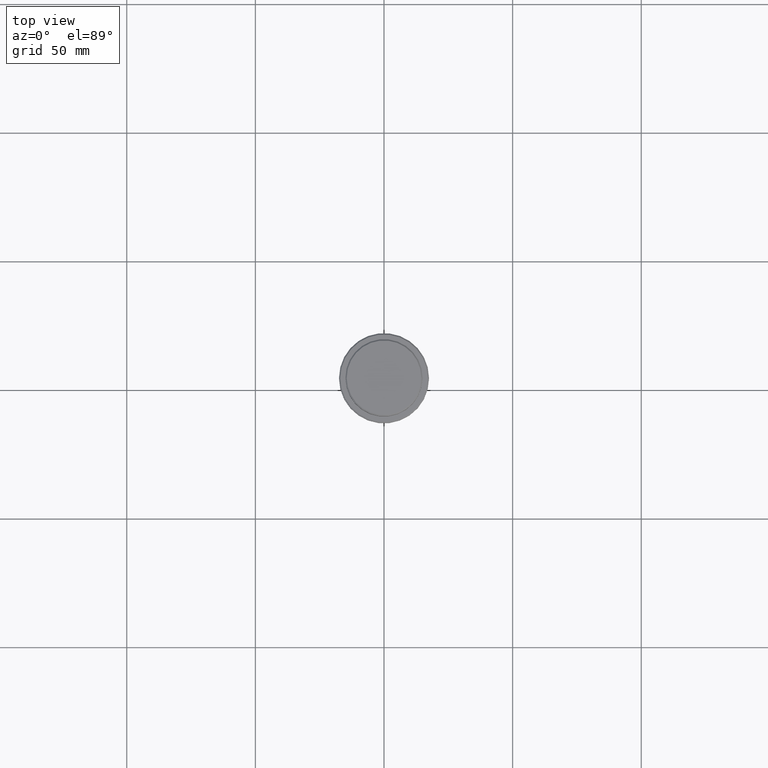
[diagram: clean part render]
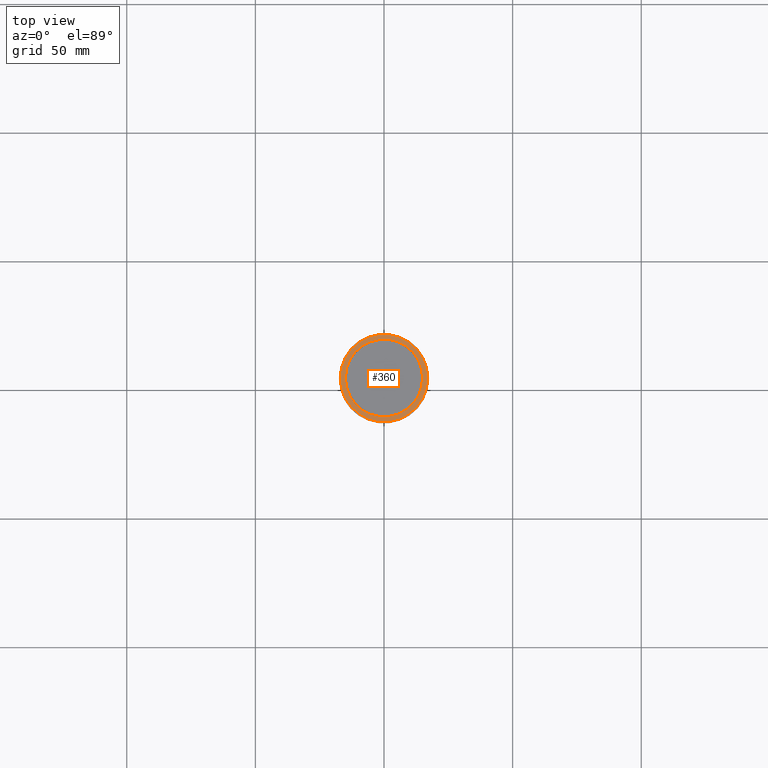
[diagram: same view with one face highlighted and labeled with its STEP entity id]
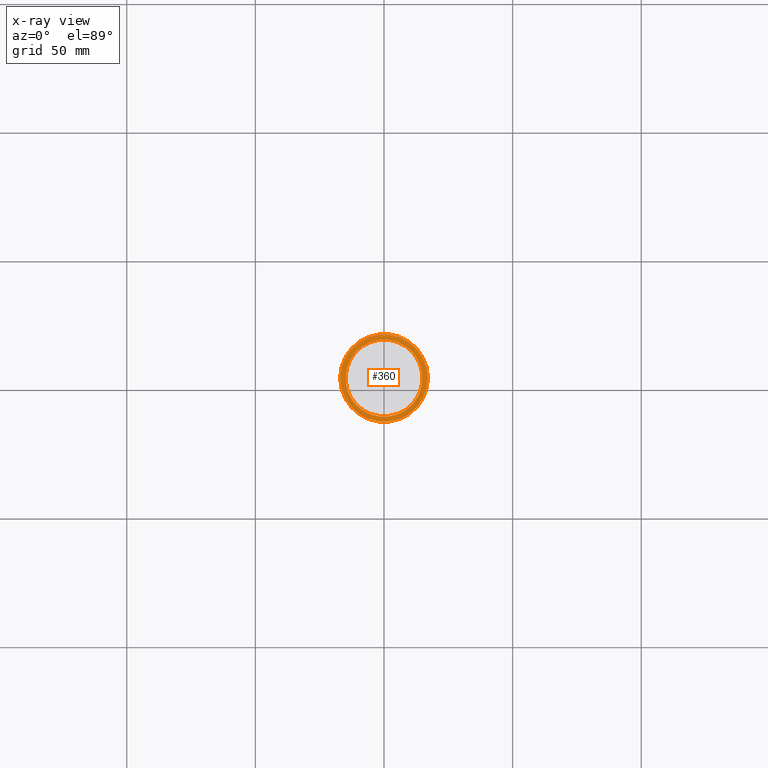
[diagram: x-ray of the same camera — body ghosted, the highlighted face saturated]
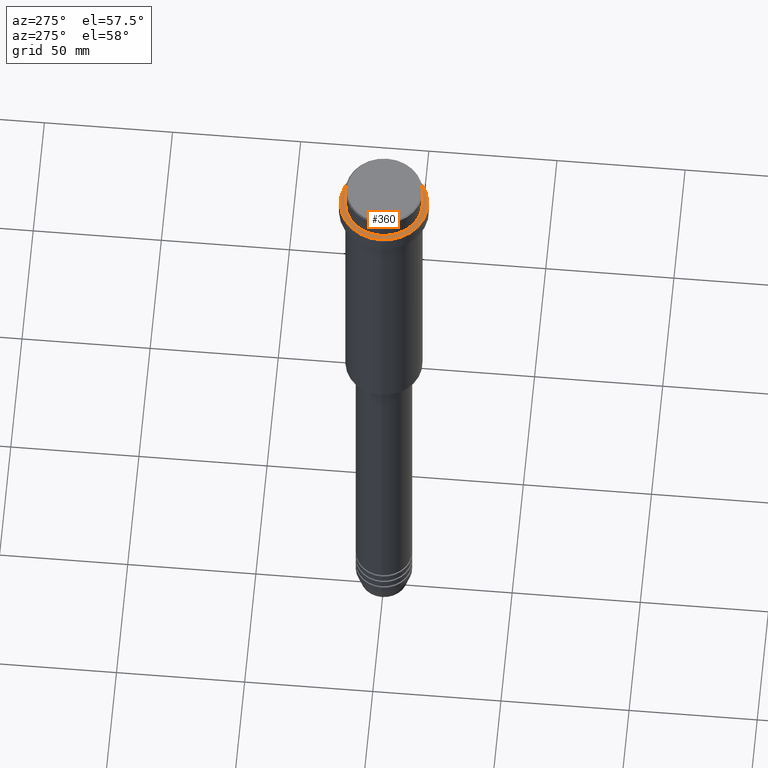
[diagram: same view with one face highlighted and labeled with its STEP entity id]
A machine part, top view. The second image highlights one B-rep face of the part: STEP entity #360.
The next image is the same camera in x-ray: the body ghosted, the highlighted face saturated — about 0% of this face is hidden behind the body in this view.
A second angle (auxiliary view) of the same face is appended — the face is thin or edge-on in the first view.
In plain terms, the highlighted planar face has unit normal (0, -0, 1).
Its self-contained STEP definition (entity closure, byte-faithful):
#75 = CIRCLE ( 'NONE', #1224, 14.99999999999999289 ) ;
#107 = AXIS2_PLACEMENT_3D ( 'NONE', #1277, #1304, #325 ) ;
#233 = EDGE_CURVE ( 'NONE', #628, #599, #818, .T. ) ;
#234 = DIRECTION ( 'NONE',  ( 1.000000000000000000, 0.000000000000000000, 0.000000000000000000 ) ) ;
#238 = CARTESIAN_POINT ( 'NONE',  ( -14.99999999999999289, 1.836970198721028800E-15, -9.000000000000000000 ) ) ;
#288 = EDGE_LOOP ( 'NONE', ( #587, #369 ) ) ;
#306 = CARTESIAN_POINT ( 'NONE',  ( 0.000000000000000000, 0.000000000000000000, -9.000000000000000000 ) ) ;
#318 = EDGE_CURVE ( 'NONE', #599, #628, #75, .T. ) ;
#325 = DIRECTION ( 'NONE',  ( 1.000000000000000000, 0.000000000000000000, 0.000000000000000000 ) ) ;
#360 = ADVANCED_FACE ( 'NONE', ( #995, #891 ), #455, .T. ) ;
#369 = ORIENTED_EDGE ( 'NONE', *, *, #318, .T. ) ;
#376 = CARTESIAN_POINT ( 'NONE',  ( 0.000000000000000000, 14.49999999999999467, -9.000000000000000000 ) ) ;
#394 = ORIENTED_EDGE ( 'NONE', *, *, #1017, .T. ) ;
#420 = CIRCLE ( 'NONE', #906, 17.00000000000001421 ) ;
#438 = CARTESIAN_POINT ( 'NONE',  ( 14.99999999999999289, 0.000000000000000000, -9.000000000000000000 ) ) ;
#453 = EDGE_LOOP ( 'NONE', ( #1030, #394 ) ) ;
#455 = PLANE ( 'NONE',  #878 ) ;
#481 = CARTESIAN_POINT ( 'NONE',  ( -17.00000000000001421, 0.000000000000000000, -9.000000000000000000 ) ) ;
#503 = DIRECTION ( 'NONE',  ( -0.000000000000000000, -0.000000000000000000, 1.000000000000000000 ) ) ;
#587 = ORIENTED_EDGE ( 'NONE', *, *, #233, .T. ) ;
#599 = VERTEX_POINT ( 'NONE', #238 ) ;
#601 = DIRECTION ( 'NONE',  ( 0.000000000000000000, 0.000000000000000000, -1.000000000000000000 ) ) ;
#628 = VERTEX_POINT ( 'NONE', #438 ) ;
#680 = CARTESIAN_POINT ( 'NONE',  ( 0.000000000000000000, 0.000000000000000000, -9.000000000000000000 ) ) ;
#732 = CARTESIAN_POINT ( 'NONE',  ( 17.00000000000001421, 2.112515728529185250E-15, -9.000000000000000000 ) ) ;
#748 = DIRECTION ( 'NONE',  ( -0.000000000000000000, -0.000000000000000000, 1.000000000000000000 ) ) ;
#767 = CIRCLE ( 'NONE', #1266, 17.00000000000001421 ) ;
#818 = CIRCLE ( 'NONE', #107, 14.99999999999999289 ) ;
#878 = AXIS2_PLACEMENT_3D ( 'NONE', #376, #1117, #234 ) ;
#883 = VERTEX_POINT ( 'NONE', #732 ) ;
#891 = FACE_BOUND ( 'NONE', #288, .T. ) ;
#902 = EDGE_CURVE ( 'NONE', #1284, #883, #767, .T. ) ;
#906 = AXIS2_PLACEMENT_3D ( 'NONE', #306, #748, #1074 ) ;
#940 = CARTESIAN_POINT ( 'NONE',  ( 0.000000000000000000, 0.000000000000000000, -9.000000000000000000 ) ) ;
#995 = FACE_OUTER_BOUND ( 'NONE', #453, .T. ) ;
#1017 = EDGE_CURVE ( 'NONE', #883, #1284, #420, .T. ) ;
#1030 = ORIENTED_EDGE ( 'NONE', *, *, #902, .T. ) ;
#1043 = DIRECTION ( 'NONE',  ( 1.000000000000000000, 0.000000000000000000, 0.000000000000000000 ) ) ;
#1074 = DIRECTION ( 'NONE',  ( 1.000000000000000000, 0.000000000000000000, 0.000000000000000000 ) ) ;
#1117 = DIRECTION ( 'NONE',  ( 0.000000000000000000, -0.000000000000000000, 1.000000000000000000 ) ) ;
#1224 = AXIS2_PLACEMENT_3D ( 'NONE', #680, #601, #1043 ) ;
#1266 = AXIS2_PLACEMENT_3D ( 'NONE', #940, #503, #1380 ) ;
#1277 = CARTESIAN_POINT ( 'NONE',  ( 0.000000000000000000, 0.000000000000000000, -9.000000000000000000 ) ) ;
#1284 = VERTEX_POINT ( 'NONE', #481 ) ;
#1304 = DIRECTION ( 'NONE',  ( 0.000000000000000000, 0.000000000000000000, -1.000000000000000000 ) ) ;
#1380 = DIRECTION ( 'NONE',  ( 1.000000000000000000, 0.000000000000000000, 0.000000000000000000 ) ) ;